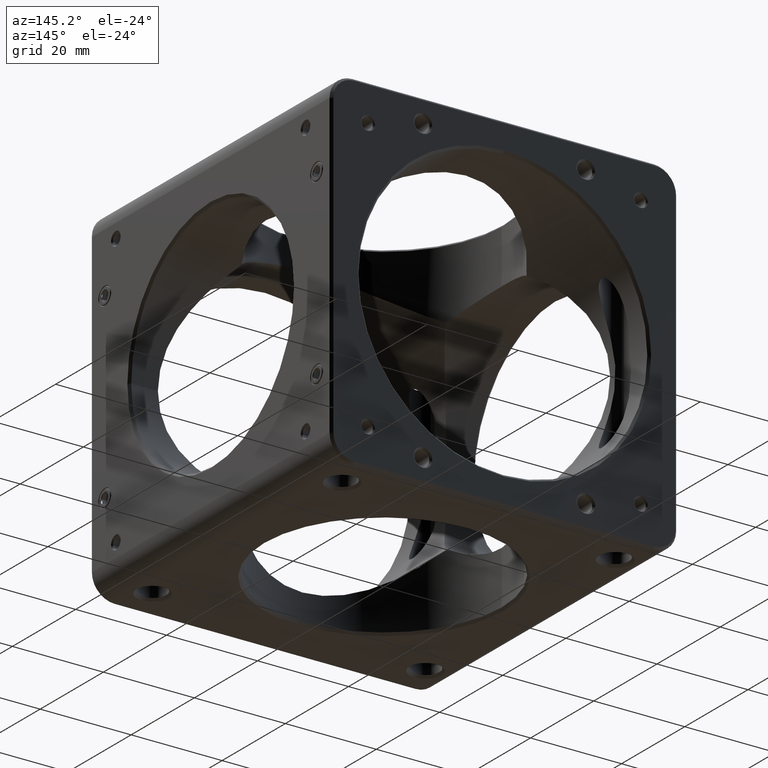
[diagram: clean part render]
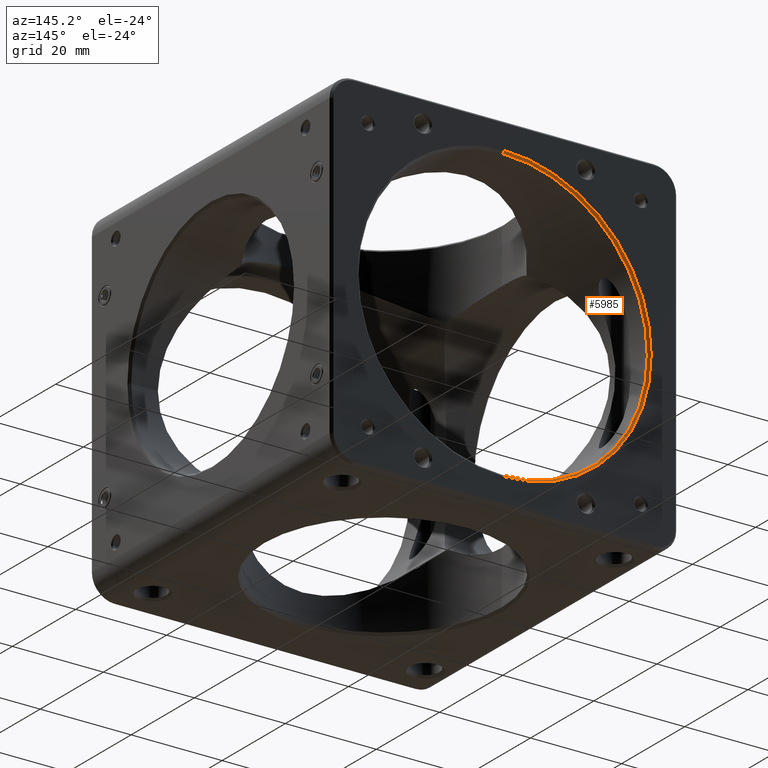
[diagram: same view with one face highlighted and labeled with its STEP entity id]
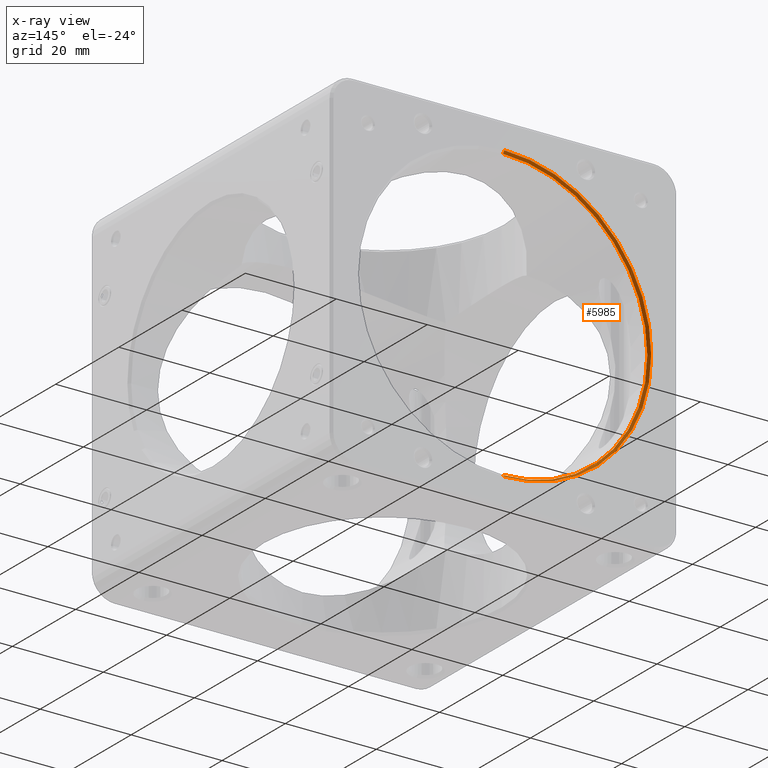
[diagram: x-ray of the same camera — body ghosted, the highlighted face saturated]
A machine part, auxiliary view. The second image highlights one B-rep face of the part: STEP entity #5985.
The next image is the same camera in x-ray: the body ghosted, the highlighted face saturated — about 0% of this face is hidden behind the body in this view.
In plain terms, the highlighted conical surface has half-angle 45 deg.
Its self-contained STEP definition (entity closure, byte-faithful):
#365 = VERTEX_POINT ( 'NONE', #10129 ) ;
#574 = ORIENTED_EDGE ( 'NONE', *, *, #6868, .F. ) ;
#1187 = DIRECTION ( 'NONE',  ( 8.659560562354873694E-17, 0.7071067811865524577, -0.7071067811865426878 ) ) ;
#1297 = VECTOR ( 'NONE', #3011, 1000.000000000000000 ) ;
#1322 = CARTESIAN_POINT ( 'NONE',  ( 3.888253587292846476E-15, 37.59999999999992326, -31.74999999999999289 ) ) ;
#1332 = VERTEX_POINT ( 'NONE', #5314 ) ;
#1651 = CIRCLE ( 'NONE', #6236, 31.75000000000000000 ) ;
#1695 = DIRECTION ( 'NONE',  ( 0.0000000000000000000, 0.0000000000000000000, -1.000000000000000000 ) ) ;
#2643 = CARTESIAN_POINT ( 'NONE',  ( 0.0000000000000000000, 38.09999999999999432, 6.938893903907228378E-15 ) ) ;
#3011 = DIRECTION ( 'NONE',  ( 0.0000000000000000000, 0.7071067811865524577, 0.7071067811865426878 ) ) ;
#3243 = ORIENTED_EDGE ( 'NONE', *, *, #6553, .T. ) ;
#3367 = CARTESIAN_POINT ( 'NONE',  ( 0.0000000000000000000, 37.59999999999992326, 31.75000000000000711 ) ) ;
#3452 = CONICAL_SURFACE ( 'NONE', #11346, 31.75000000000000000, 0.7853981633974415066 ) ;
#3556 = CARTESIAN_POINT ( 'NONE',  ( 0.0000000000000000000, 38.09999999999999432, 32.25000000000007105 ) ) ;
#3871 = VECTOR ( 'NONE', #1187, 1000.000000000000000 ) ;
#3975 = EDGE_LOOP ( 'NONE', ( #574, #3243, #10208, #6460 ) ) ;
#4042 = CARTESIAN_POINT ( 'NONE',  ( 0.0000000000000000000, 37.59999999999992326, 6.938893903907228378E-15 ) ) ;
#4454 = DIRECTION ( 'NONE',  ( 0.0000000000000000000, 0.0000000000000000000, -1.000000000000000000 ) ) ;
#4659 = DIRECTION ( 'NONE',  ( 0.0000000000000000000, -1.000000000000000000, 0.0000000000000000000 ) ) ;
#4917 = VERTEX_POINT ( 'NONE', #9526 ) ;
#5286 = CIRCLE ( 'NONE', #9751, 32.25000000000006395 ) ;
#5314 = CARTESIAN_POINT ( 'NONE',  ( 0.0000000000000000000, 37.59999999999992326, 31.75000000000000711 ) ) ;
#5420 = LINE ( 'NONE', #3367, #1297 ) ;
#5500 = DIRECTION ( 'NONE',  ( 0.0000000000000000000, 1.000000000000000000, 0.0000000000000000000 ) ) ;
#5985 = ADVANCED_FACE ( 'NONE', ( #9004 ), #3452, .F. ) ;
#6236 = AXIS2_PLACEMENT_3D ( 'NONE', #8197, #5500, #4454 ) ;
#6460 = ORIENTED_EDGE ( 'NONE', *, *, #11425, .F. ) ;
#6473 = VERTEX_POINT ( 'NONE', #3556 ) ;
#6553 = EDGE_CURVE ( 'NONE', #365, #4917, #6647, .T. ) ;
#6647 = LINE ( 'NONE', #1322, #3871 ) ;
#6868 = EDGE_CURVE ( 'NONE', #365, #1332, #1651, .T. ) ;
#8197 = CARTESIAN_POINT ( 'NONE',  ( 0.0000000000000000000, 37.59999999999992326, 6.938893903907228378E-15 ) ) ;
#9004 = FACE_OUTER_BOUND ( 'NONE', #3975, .T. ) ;
#9526 = CARTESIAN_POINT ( 'NONE',  ( 3.949485927250221150E-15, 38.09999999999999432, -32.25000000000005684 ) ) ;
#9751 = AXIS2_PLACEMENT_3D ( 'NONE', #2643, #4659, #1695 ) ;
#10129 = CARTESIAN_POINT ( 'NONE',  ( 3.888253587292845687E-15, 37.59999999999992326, -31.74999999999999289 ) ) ;
#10134 = DIRECTION ( 'NONE',  ( 0.0000000000000000000, 1.000000000000000000, 0.0000000000000000000 ) ) ;
#10208 = ORIENTED_EDGE ( 'NONE', *, *, #11289, .F. ) ;
#11289 = EDGE_CURVE ( 'NONE', #6473, #4917, #5286, .T. ) ;
#11346 = AXIS2_PLACEMENT_3D ( 'NONE', #4042, #10134, #11599 ) ;
#11425 = EDGE_CURVE ( 'NONE', #1332, #6473, #5420, .T. ) ;
#11599 = DIRECTION ( 'NONE',  ( 0.0000000000000000000, 0.0000000000000000000, 1.000000000000000000 ) ) ;